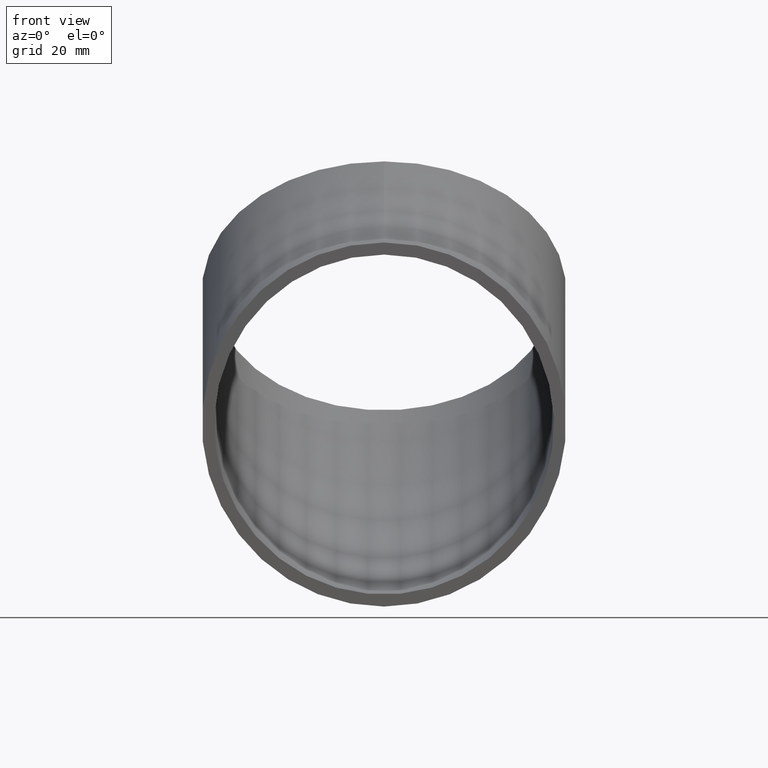
[diagram: clean part render]
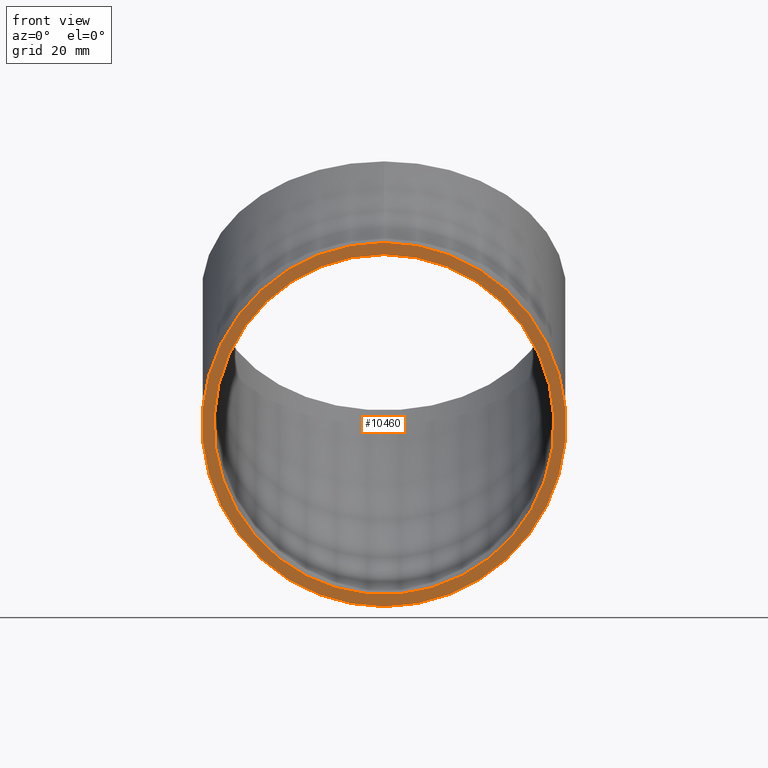
[diagram: same view with one face highlighted and labeled with its STEP entity id]
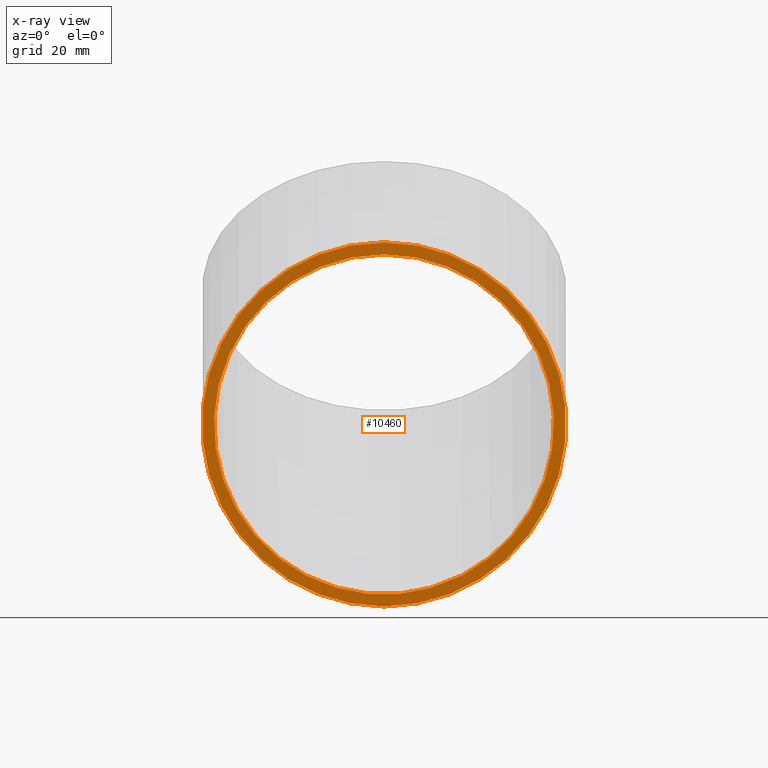
[diagram: x-ray of the same camera — body ghosted, the highlighted face saturated]
A machine part, front view. The second image highlights one B-rep face of the part: STEP entity #10460.
The next image is the same camera in x-ray: the body ghosted, the highlighted face saturated — about 0% of this face is hidden behind the body in this view.
In plain terms, the highlighted planar face has unit normal (0, 1, 0).
Its self-contained STEP definition (entity closure, byte-faithful):
#581 = FACE_BOUND ( 'NONE', #6113, .T. ) ;
#877 = DIRECTION ( 'NONE',  ( 0.000000000000000000, 1.000000000000000000, 0.000000000000000000 ) ) ;
#1631 = CIRCLE ( 'NONE', #3678, 30.14999999999999503 ) ;
#2713 = CARTESIAN_POINT ( 'NONE',  ( 0.000000000000000000, 0.000000000000000000, -76.00000000000000000 ) ) ;
#3575 = DIRECTION ( 'NONE',  ( 0.000000000000000000, 1.000000000000000000, 0.000000000000000000 ) ) ;
#3602 = VERTEX_POINT ( 'NONE', #11074 ) ;
#3652 = PLANE ( 'NONE',  #4097 ) ;
#3678 = AXIS2_PLACEMENT_3D ( 'NONE', #9133, #877, #9930 ) ;
#4097 = AXIS2_PLACEMENT_3D ( 'NONE', #2713, #3575, #4514 ) ;
#4514 = DIRECTION ( 'NONE',  ( 0.000000000000000000, -0.000000000000000000, 1.000000000000000000 ) ) ;
#4612 = ORIENTED_EDGE ( 'NONE', *, *, #7400, .T. ) ;
#4914 = VERTEX_POINT ( 'NONE', #11897 ) ;
#5364 = CIRCLE ( 'NONE', #9175, 28.15000000000000924 ) ;
#5633 = DIRECTION ( 'NONE',  ( 0.000000000000000000, 0.000000000000000000, 1.000000000000000000 ) ) ;
#5905 = EDGE_CURVE ( 'NONE', #3602, #3602, #1631, .T. ) ;
#5927 = FACE_OUTER_BOUND ( 'NONE', #11618, .T. ) ;
#6113 = EDGE_LOOP ( 'NONE', ( #4612 ) ) ;
#7400 = EDGE_CURVE ( 'NONE', #4914, #4914, #5364, .T. ) ;
#7402 = DIRECTION ( 'NONE',  ( 0.000000000000000000, 1.000000000000000000, 0.000000000000000000 ) ) ;
#9133 = CARTESIAN_POINT ( 'NONE',  ( 0.000000000000000000, 0.000000000000000000, -76.00000000000000000 ) ) ;
#9175 = AXIS2_PLACEMENT_3D ( 'NONE', #10120, #7402, #5633 ) ;
#9930 = DIRECTION ( 'NONE',  ( 0.000000000000000000, 0.000000000000000000, 1.000000000000000000 ) ) ;
#10120 = CARTESIAN_POINT ( 'NONE',  ( 0.000000000000000000, 0.000000000000000000, -76.00000000000000000 ) ) ;
#10450 = ORIENTED_EDGE ( 'NONE', *, *, #5905, .F. ) ;
#10460 = ADVANCED_FACE ( 'NONE', ( #581, #5927 ), #3652, .F. ) ;
#11074 = CARTESIAN_POINT ( 'NONE',  ( 0.000000000000000000, 0.000000000000000000, -45.85000000000000142 ) ) ;
#11618 = EDGE_LOOP ( 'NONE', ( #10450 ) ) ;
#11897 = CARTESIAN_POINT ( 'NONE',  ( 0.000000000000000000, 0.000000000000000000, -47.84999999999998721 ) ) ;